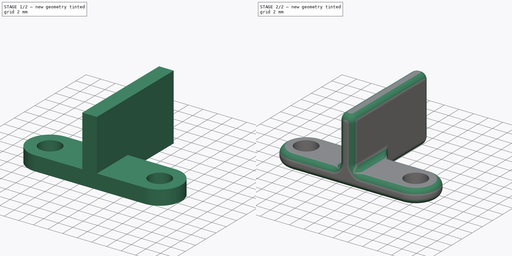
[diagram: build sequence overview — one tinted view per stage of 2, left to right]
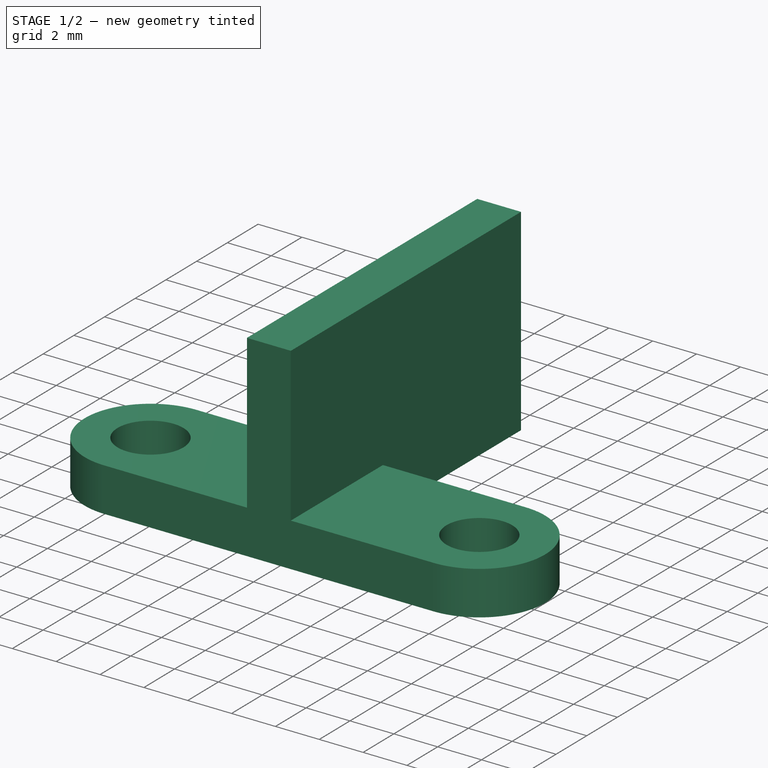
[diagram: stage 1 of 2 — iso view after this stage's code; geometry added in this stage tinted green]
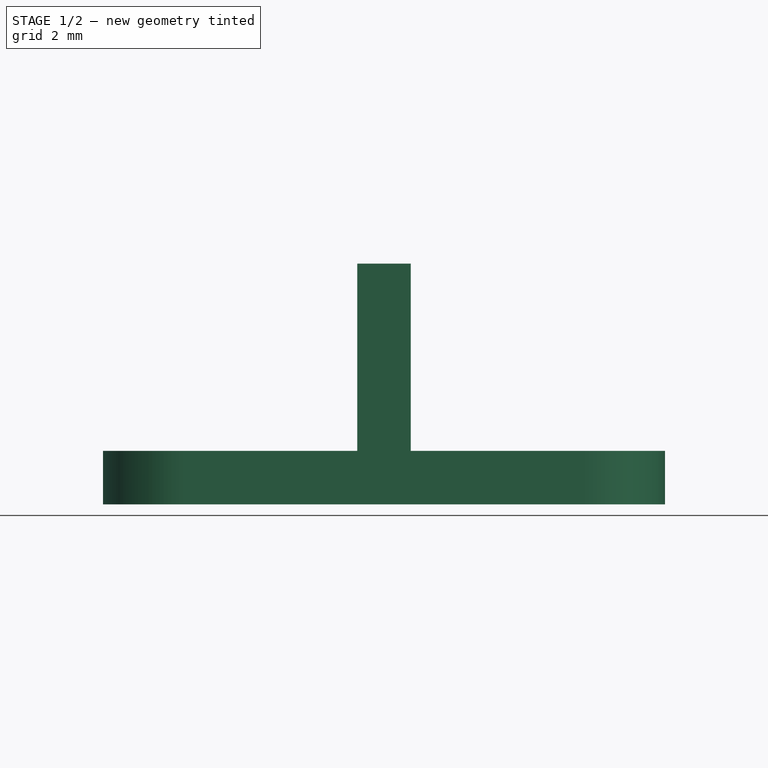
[diagram: stage 1 of 2 — front view after this stage's code; geometry added in this stage tinted green]
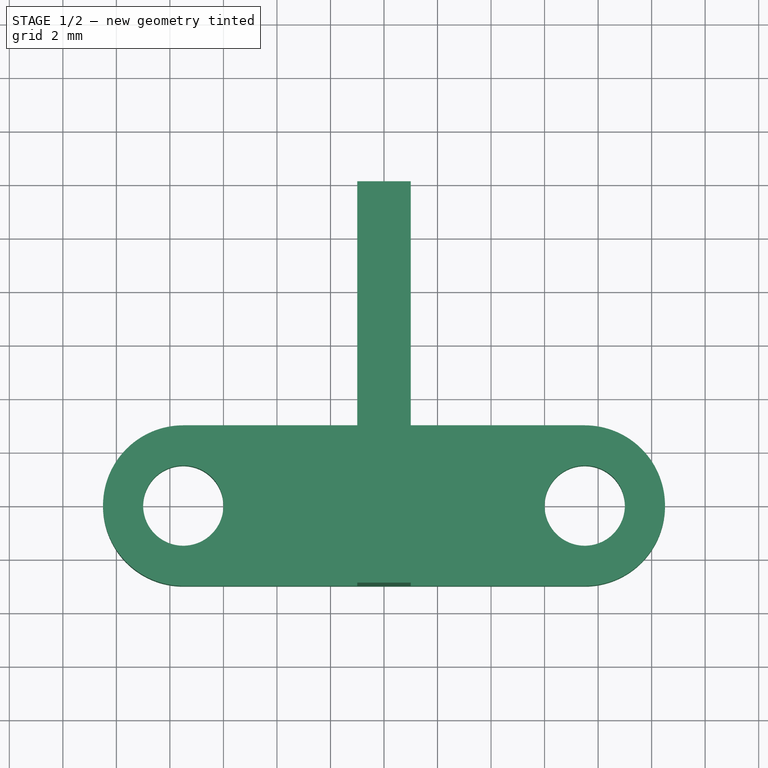
[diagram: stage 1 of 2 — top view after this stage's code; geometry added in this stage tinted green]
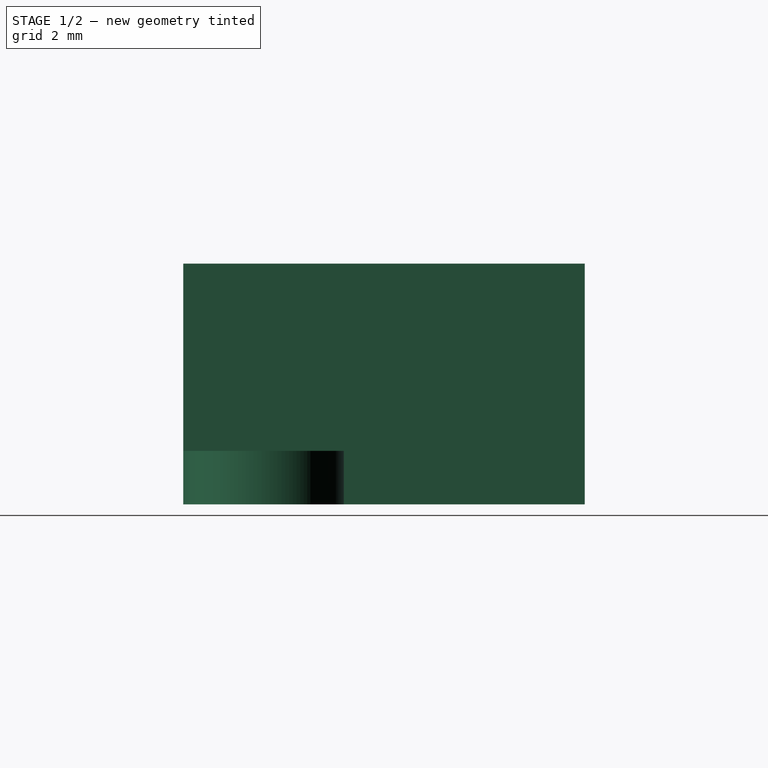
[diagram: stage 1 of 2 — right view after this stage's code; geometry added in this stage tinted green]
FCSTD DOCUMENT  (FreeCAD 1.1R38794 (Git))
Label: switch_trigger
License: All rights reserved
LicenseURL: https://en.wikipedia.org/wiki/All_rights_reserved
objects: Sketcher::SketchObject×2, PartDesign::Pad×2, PartDesign::Fillet×2, PartDesign::Body×1
note: 17 computed .brp shape members not serialized (recipe doc carries the construction recipe); baked Part::Feature solids carry a one-line shape summary decoded from their .brp

FEATURE [Sketcher::SketchObject] Sketch
  ArcFitTolerance = 1e-06
  AttachmentSupport = -> [XY_Plane]
  FullyConstrained = true
  MakeInternals = false
  MapMode = 5
  sketch-geometry (6):
    g0: Circle CenterX=-7.5 CenterY=0 CenterZ=0 NormalX=0 NormalY=0 NormalZ=1 AngleXU=0 Radius=1.5
    g1: Circle CenterX=7.5 CenterY=1e-16 CenterZ=0 NormalX=0 NormalY=0 NormalZ=1 AngleXU=0 Radius=1.5
    g2: ArcOfCircle CenterX=-7.5 CenterY=0 CenterZ=0 NormalX=0 NormalY=0 NormalZ=1 AngleXU=0 Radius=3 StartAngle=1.5708 EndAngle=4.71239
    g3: ArcOfCircle CenterX=7.5 CenterY=1e-16 CenterZ=0 NormalX=0 NormalY=0 NormalZ=1 AngleXU=0 Radius=3 StartAngle=4.71239 EndAngle=7.85398
    g4: LineSegment StartX=-7.5 StartY=3 StartZ=0 EndX=7.5 EndY=3 EndZ=0
    g5: LineSegment StartX=-7.5 StartY=-3 StartZ=0 EndX=7.5 EndY=-3 EndZ=0
  constraints (13):
    c: PointOnObject(g0,g-1)
    c: Symmetric(g0,g1,g-2)
    c: Equal(g0,g1)
    c: DistanceX(g0,g1) = 15
    c: Diameter(g1) = 3
    c: Tangent(g2,g4) = 1.5708
    c: Tangent(g2,g5) = -1.5708
    c: Tangent(g3,g4) = 1.5708
    c: Tangent(g3,g5) = -1.5708
    c: Equal(g2,g3)
    c: Radius(g2) = 3
    c: Coincident(g2,g0)
    c: Coincident(g3,g1)
FEATURE [PartDesign::Pad] Pad
  Direction = (0,0,1)
  Length = 2
  Length2 = 10
  Profile = -> Sketch
  ReferenceAxis = -> Sketch [N_Axis]
  Refine = true
  Suppressed = false
  Type = 0
FEATURE [Sketcher::SketchObject] Sketch001
  ArcFitTolerance = 1e-06
  AttachmentSupport = -> [Pad]
  ExternalGeometry = -> [Pad]
  FullyConstrained = true
  MakeInternals = false
  MapMode = 5
  Placement = pos=(0,0,2) rot=(0,0,1;0rad)
  sketch-geometry (4):
    g0: LineSegment StartX=-1 StartY=12 StartZ=0 EndX=-1 EndY=-3 EndZ=0
    g1: LineSegment StartX=-1 StartY=-3 StartZ=0 EndX=1 EndY=-3 EndZ=0
    g2: LineSegment StartX=1 StartY=-3 StartZ=0 EndX=1 EndY=12 EndZ=0
    g3: LineSegment StartX=1 StartY=12 StartZ=0 EndX=-1 EndY=12 EndZ=0
  constraints (11):
    c: Coincident(g0,g1)
    c: Coincident(g1,g2)
    c: Coincident(g2,g3)
    c: Coincident(g3,g0)
    c: Vertical(g0)
    c: Vertical(g2)
    c: Horizontal(g3)
    c: DistanceX(g3,g3) = 2
    c: DistanceY(g2,g2) = 15
    c: PointOnObject(g1,g-3)
    c: Symmetric(g0,g1,g-2)
FEATURE [PartDesign::Pad] Pad001
  BaseFeature = -> Pad
  Direction = (0,0,1)
  Length = 7
  Length2 = 2
  Profile = -> Sketch001
  ReferenceAxis = -> Sketch001 [N_Axis]
  Refine = true
  Suppressed = false
  Type = 4
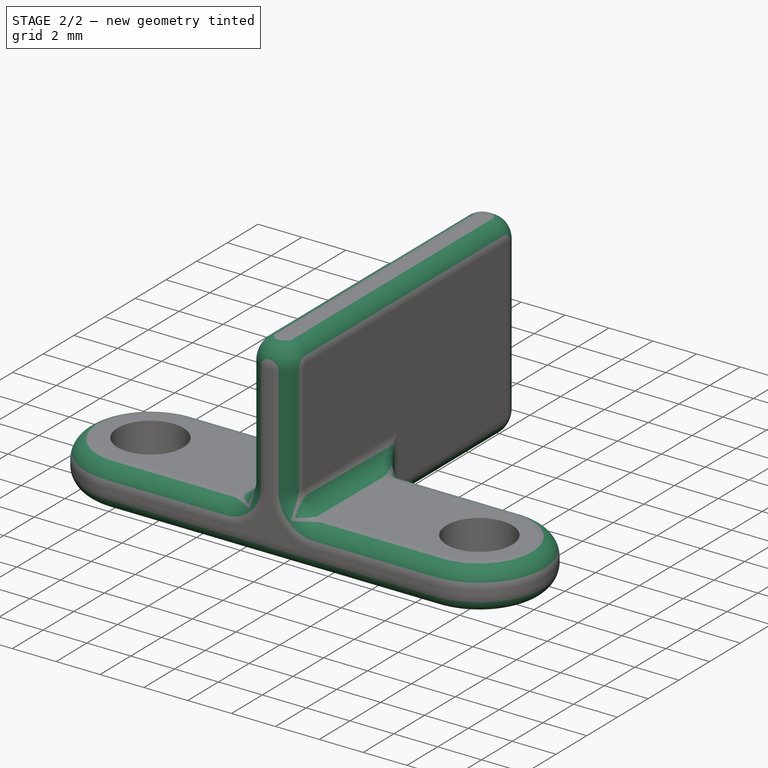
[diagram: stage 2 of 2 — iso view after this stage's code; geometry added in this stage tinted green]
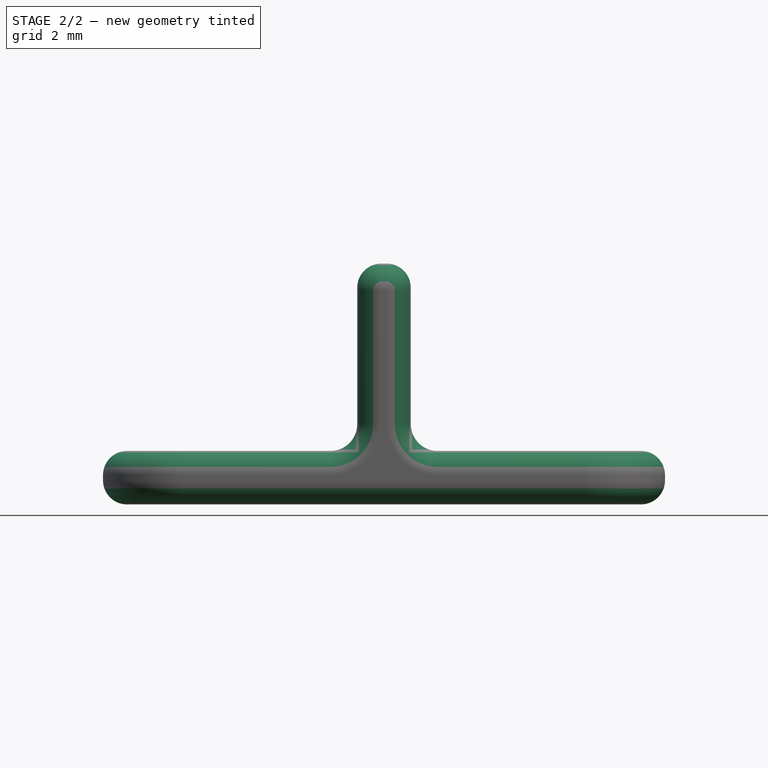
[diagram: stage 2 of 2 — front view after this stage's code; geometry added in this stage tinted green]
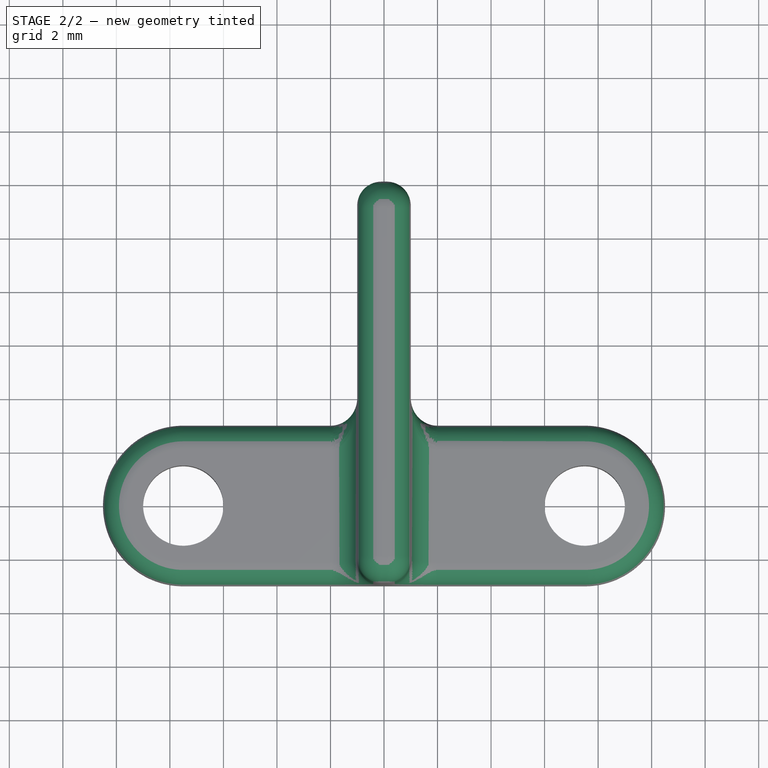
[diagram: stage 2 of 2 — top view after this stage's code; geometry added in this stage tinted green]
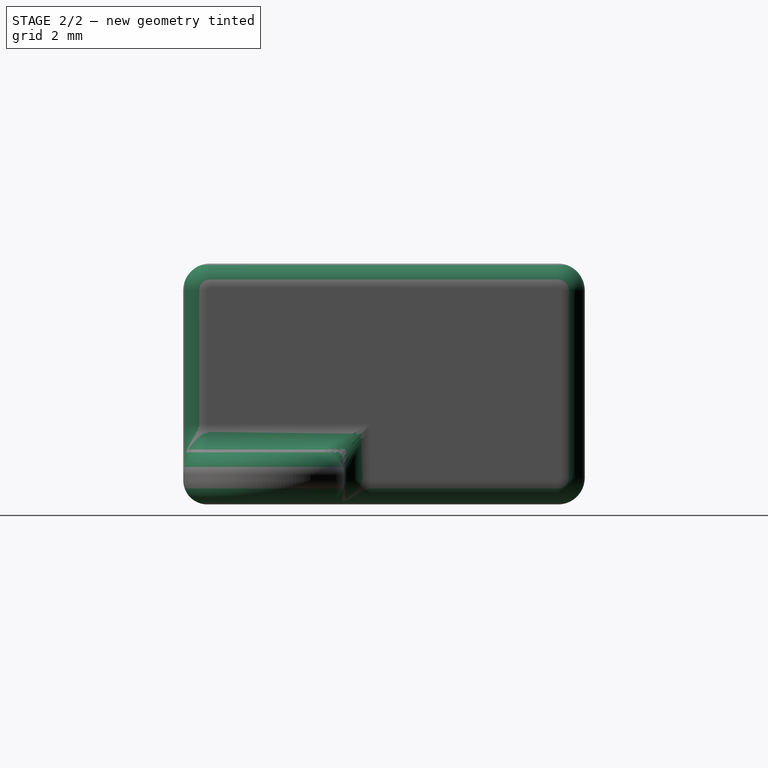
[diagram: stage 2 of 2 — right view after this stage's code; geometry added in this stage tinted green]
FEATURE [PartDesign::Fillet] Fillet
  Base = -> Pad001 [Edge7,Edge16,Edge25,Edge27,Edge29,Edge30,Edge14]
  BaseFeature = -> Pad001
  Radius = 1
  Refine = true
  SupportTransform = false
  Suppressed = false
  UseAllEdges = false
FEATURE [PartDesign::Fillet] Fillet001
  Base = -> Fillet [Edge34]
  BaseFeature = -> Fillet
  Radius = 0.9
  Refine = true
  SupportTransform = false
  Suppressed = false
  UseAllEdges = false
FEATURE [PartDesign::Body] Body  label="switch_trigger_1"
  AllowCompound = false
  Group = -> [Sketch,Pad,Sketch001,Pad001,Fillet,Fillet001]
  Origin = -> Origin
  Tip = -> Fillet001
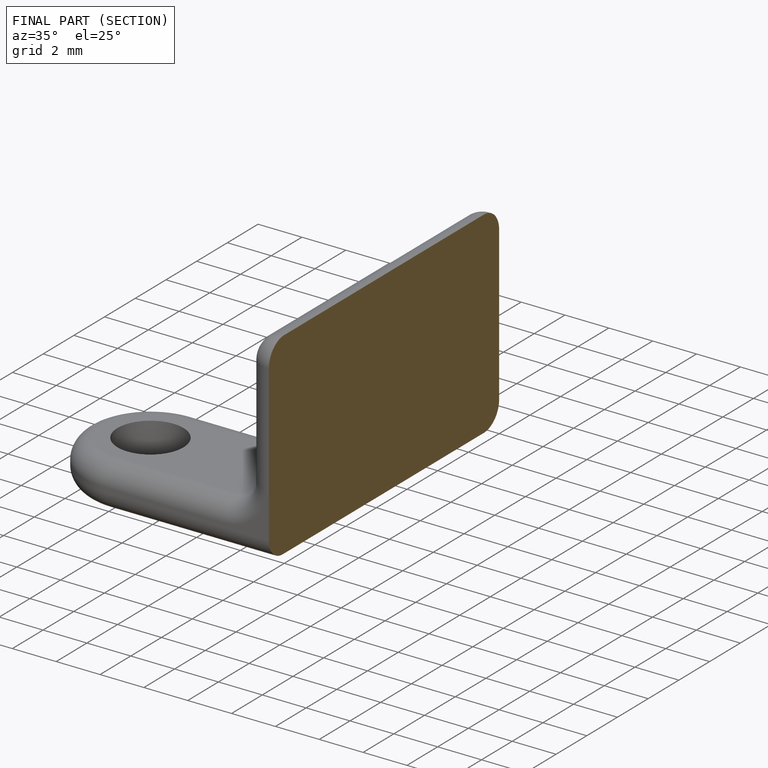
[diagram: finished part — half-section view (interior)]
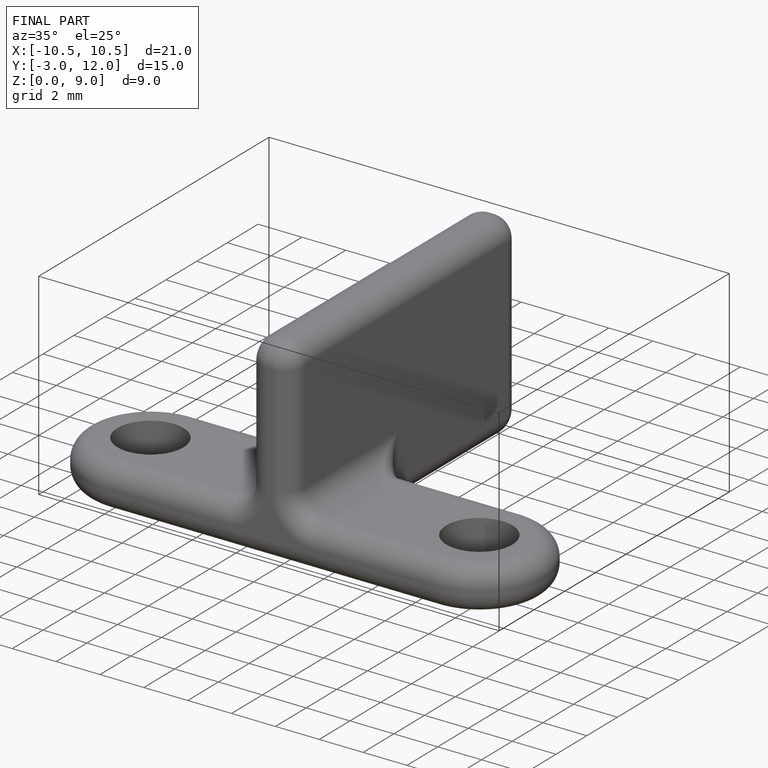
[diagram: finished part — iso view with bounding-box wireframe]
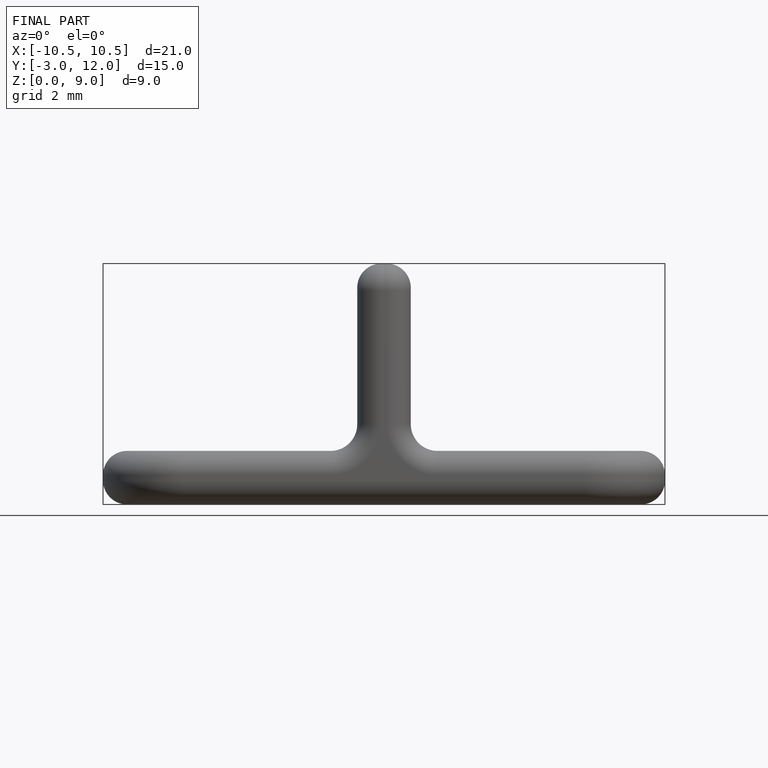
[diagram: finished part — front view with bounding-box wireframe]
